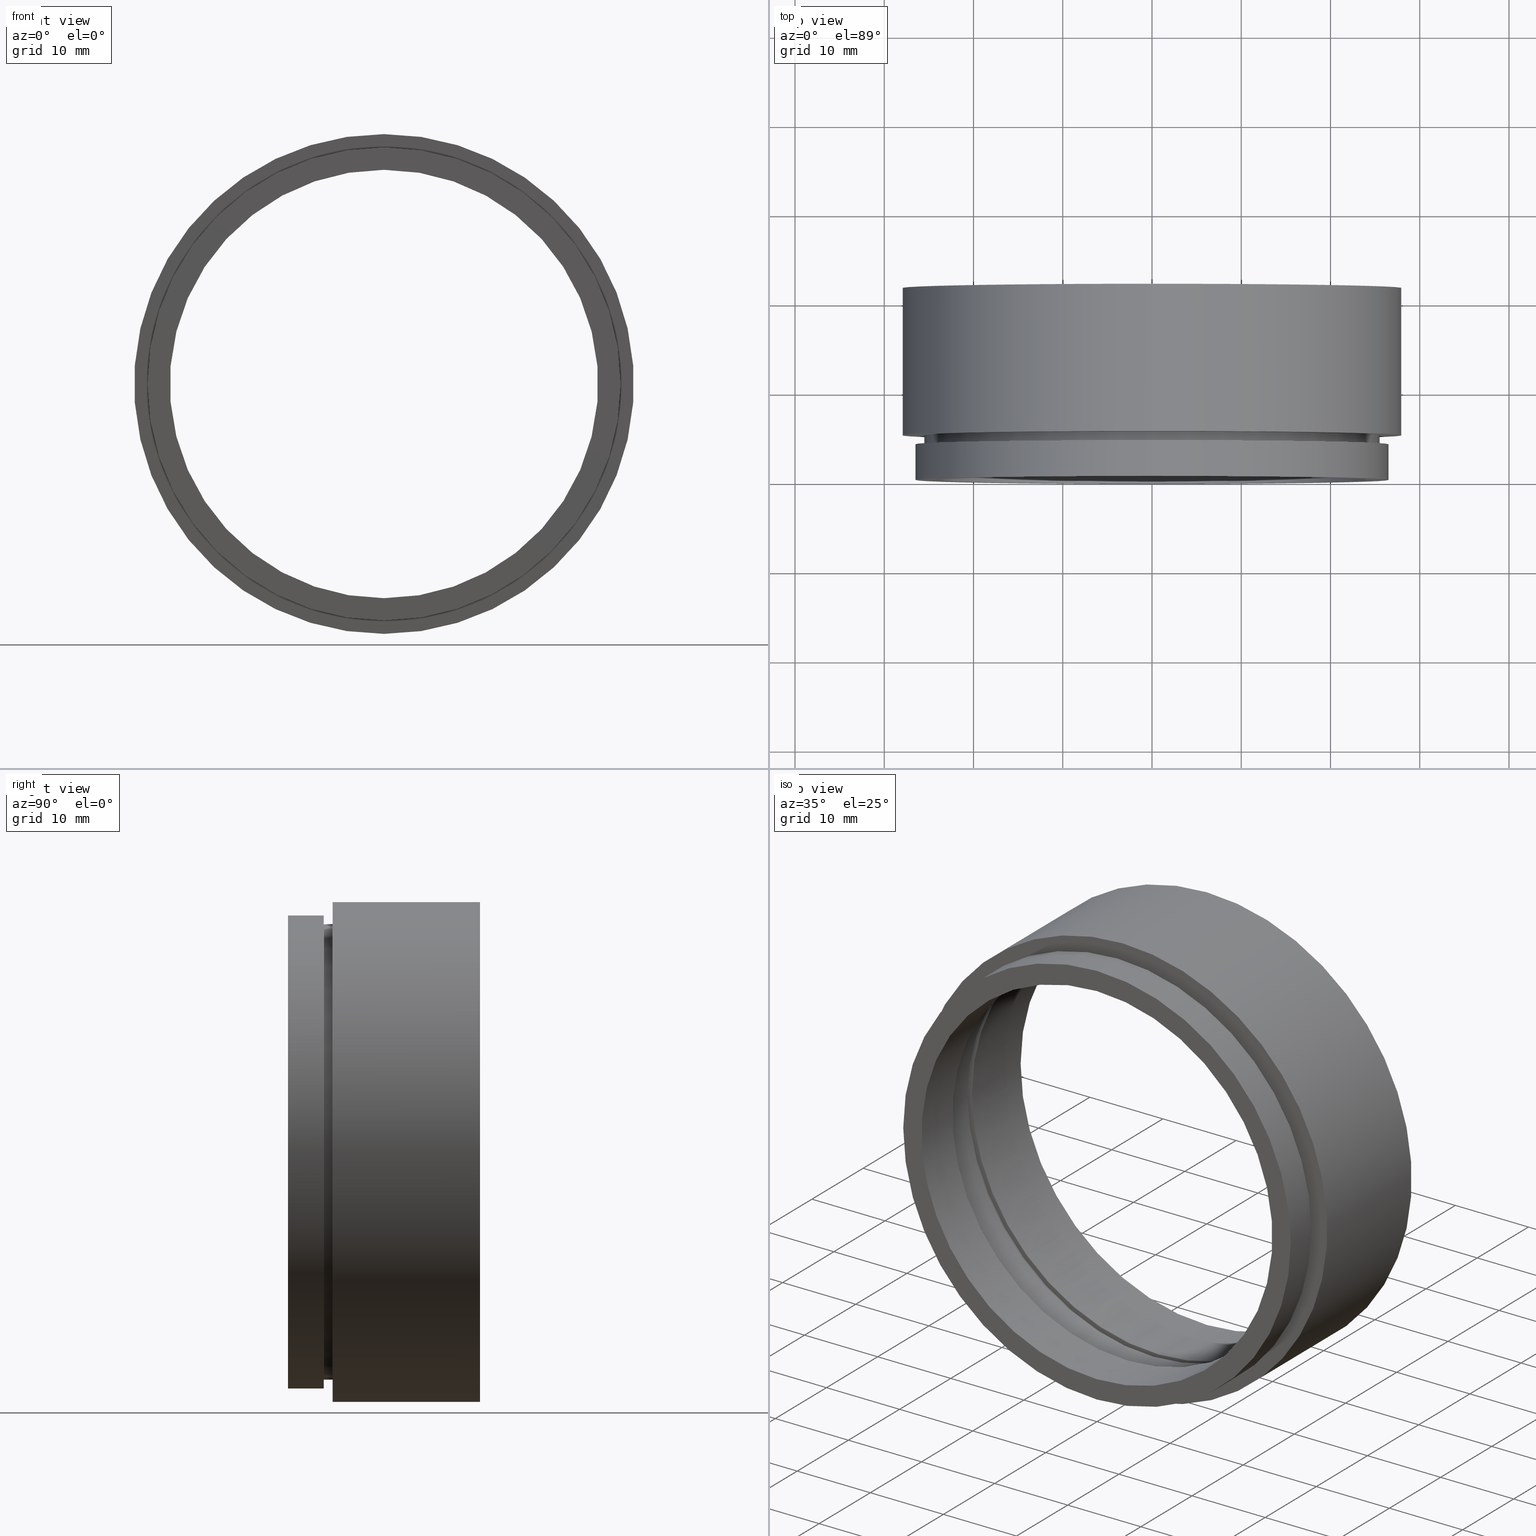
[diagram: canonical four-view strip — front | top / right | iso, engineering-drawing reading convention]
A machine part, canonical four-view strip (front | top / right | iso — engineering-drawing reading convention). The complete STEP part file that produces these views, byte-faithful:
ISO-10303-21;
HEADER;
FILE_DESCRIPTION (( 'STEP AP214' ),
    '1' );
FILE_NAME ('500001.STEP',
    '2019-08-29T05:40:49',
    ( 'user' ),
    ( '΢���й�' ),
    'SwSTEP 2.0',
    'SolidWorks 2016',
    '' );
FILE_SCHEMA (( 'AUTOMOTIVE_DESIGN' ));
ENDSEC;

DATA;
#1 =( NAMED_UNIT ( * ) PLANE_ANGLE_UNIT ( ) SI_UNIT ( $, .RADIAN. ) );
#2 =( NAMED_UNIT ( * ) SI_UNIT ( $, .STERADIAN. ) SOLID_ANGLE_UNIT ( ) );
#3 = VECTOR ( 'NONE', #120, 1000.000000000000000 ) ;
#4 = STYLED_ITEM ( 'NONE', ( #200 ), #8 ) ;
#5 = ADVANCED_FACE ( 'NONE', ( #600 ), #523, .T. ) ;
#6 = ORIENTED_EDGE ( 'NONE', *, *, #232, .F. ) ;
#7 = ORIENTED_EDGE ( 'NONE', *, *, #399, .T. ) ;
#8 = ADVANCED_FACE ( 'NONE', ( #673 ), #413, .T. ) ;
#9 = DIRECTION ( 'NONE',  ( -0.0000000000000000000, -1.000000000000000000, -0.0000000000000000000 ) ) ;
#10 = AXIS2_PLACEMENT_3D ( 'NONE', #597, #580, #381 ) ;
#11 = STYLED_ITEM ( 'NONE', ( #648 ), #317 ) ;
#12 = ORIENTED_EDGE ( 'NONE', *, *, #622, .F. ) ;
#13 = ORIENTED_EDGE ( 'NONE', *, *, #160, .F. ) ;
#14 = ORIENTED_EDGE ( 'NONE', *, *, #393, .F. ) ;
#15 = EDGE_LOOP ( 'NONE', ( #636, #658, #450, #231 ) ) ;
#16 = DIRECTION ( 'NONE',  ( -0.0000000000000000000, -1.000000000000000000, -0.0000000000000000000 ) ) ;
#17 = CARTESIAN_POINT ( 'NONE',  ( 0.0000000000000000000, 6.000000000000000900, 0.0000000000000000000 ) ) ;
#18 = FACE_OUTER_BOUND ( 'NONE', #116, .T. ) ;
#19 = CARTESIAN_POINT ( 'NONE',  ( 3.122849337825750200E-015, 21.50000000000000000, 25.50000000000000000 ) ) ;
#20 = CARTESIAN_POINT ( 'NONE',  ( 3.196328145774592300E-015, 0.0000000000000000000, 26.10000000000000100 ) ) ;
#21 = ORIENTED_EDGE ( 'NONE', *, *, #85, .T. ) ;
#22 = FACE_OUTER_BOUND ( 'NONE', #277, .T. ) ;
#23 = AXIS2_PLACEMENT_3D ( 'NONE', #304, #230, #471 ) ;
#24 = UNCERTAINTY_MEASURE_WITH_UNIT (LENGTH_MEASURE( 1.000000000000000100E-005 ), #458, 'distance_accuracy_value', 'NONE');
#25 = DIRECTION ( 'NONE',  ( 0.0000000000000000000, 0.0000000000000000000, -1.000000000000000000 ) ) ;
#26 =( LENGTH_UNIT ( ) NAMED_UNIT ( * ) SI_UNIT ( .MILLI., .METRE. ) );
#27 = EDGE_CURVE ( 'NONE', #498, #351, #465, .T. ) ;
#28 = DIRECTION ( 'NONE',  ( -0.0000000000000000000, -1.000000000000000000, -0.0000000000000000000 ) ) ;
#29 = ORIENTED_EDGE ( 'NONE', *, *, #90, .T. ) ;
#30 = ORIENTED_EDGE ( 'NONE', *, *, #479, .T. ) ;
#31 = PRESENTATION_STYLE_ASSIGNMENT (( #418 ) ) ;
#32 = DIRECTION ( 'NONE',  ( -0.0000000000000000000, -1.000000000000000000, -0.0000000000000000000 ) ) ;
#33 = DIRECTION ( 'NONE',  ( -0.0000000000000000000, -1.000000000000000000, -0.0000000000000000000 ) ) ;
#34 = AXIS2_PLACEMENT_3D ( 'NONE', #281, #492, #248 ) ;
#35 = DIRECTION ( 'NONE',  ( -0.0000000000000000000, -1.000000000000000000, -0.0000000000000000000 ) ) ;
#36 = FACE_OUTER_BOUND ( 'NONE', #378, .T. ) ;
#37 = DIRECTION ( 'NONE',  ( -0.0000000000000000000, -1.000000000000000000, -0.0000000000000000000 ) ) ;
#38 = SURFACE_STYLE_FILL_AREA ( #397 ) ;
#39 = AXIS2_PLACEMENT_3D ( 'NONE', #192, #618, #428 ) ;
#40 = VECTOR ( 'NONE', #651, 1000.000000000000000 ) ;
#41 = SURFACE_STYLE_USAGE ( .BOTH. , #125 ) ;
#42 = DIRECTION ( 'NONE',  ( -0.0000000000000000000, -1.000000000000000000, -0.0000000000000000000 ) ) ;
#43 = ORIENTED_EDGE ( 'NONE', *, *, #99, .F. ) ;
#44 = DIRECTION ( 'NONE',  ( -0.0000000000000000000, -1.000000000000000000, -0.0000000000000000000 ) ) ;
#45 = CIRCLE ( 'NONE', #411, 25.50000000000000000 ) ;
#46 = EDGE_CURVE ( 'NONE', #541, #78, #332, .T. ) ;
#47 = FACE_OUTER_BOUND ( 'NONE', #300, .T. ) ;
#48 = DIRECTION ( 'NONE',  ( -0.0000000000000000000, -1.000000000000000000, -0.0000000000000000000 ) ) ;
#49 = DIRECTION ( 'NONE',  ( -0.0000000000000000000, -1.000000000000000000, -0.0000000000000000000 ) ) ;
#50 = ORIENTED_EDGE ( 'NONE', *, *, #296, .F. ) ;
#51 = ADVANCED_FACE ( 'NONE', ( #47 ), #83, .T. ) ;
#52 = DIRECTION ( 'NONE',  ( 0.0000000000000000000, 0.0000000000000000000, -1.000000000000000000 ) ) ;
#53 =( GEOMETRIC_REPRESENTATION_CONTEXT ( 3 ) GLOBAL_UNCERTAINTY_ASSIGNED_CONTEXT ( ( #334 ) ) GLOBAL_UNIT_ASSIGNED_CONTEXT ( ( #107, #1, #476 ) ) REPRESENTATION_CONTEXT ( 'NONE', 'WORKASPACE' ) );
#54 = DIRECTION ( 'NONE',  ( 0.0000000000000000000, 0.0000000000000000000, -1.000000000000000000 ) ) ;
#55 = ADVANCED_FACE ( 'NONE', ( #64 ), #355, .F. ) ;
#56 = CARTESIAN_POINT ( 'NONE',  ( 3.110602869834276900E-015, 0.0000000000000000000, 25.39999999999999900 ) ) ;
#57 = AXIS2_PLACEMENT_3D ( 'NONE', #293, #183, #483 ) ;
#58 = ORIENTED_EDGE ( 'NONE', *, *, #547, .F. ) ;
#59 = VERTEX_POINT ( 'NONE', #543 ) ;
#60 = VERTEX_POINT ( 'NONE', #262 ) ;
#61 = VECTOR ( 'NONE', #9, 1000.000000000000000 ) ;
#62 = MECHANICAL_DESIGN_GEOMETRIC_PRESENTATION_REPRESENTATION (  '', ( #504 ), #178 ) ;
#63 = CARTESIAN_POINT ( 'NONE',  ( 0.0000000000000000000, 6.000000000000000000, -24.00000000000000000 ) ) ;
#64 = FACE_OUTER_BOUND ( 'NONE', #517, .T. ) ;
#65 = DIRECTION ( 'NONE',  ( 0.0000000000000000000, 0.0000000000000000000, -1.000000000000000000 ) ) ;
#66 = DIRECTION ( 'NONE',  ( -0.0000000000000000000, -1.000000000000000000, -0.0000000000000000000 ) ) ;
#67 = EDGE_LOOP ( 'NONE', ( #599, #279, #406, #156 ) ) ;
#68 = SHAPE_DEFINITION_REPRESENTATION ( #672, #537 ) ;
#69 = DIRECTION ( 'NONE',  ( 0.0000000000000000000, 0.0000000000000000000, -1.000000000000000000 ) ) ;
#70 = MECHANICAL_DESIGN_GEOMETRIC_PRESENTATION_REPRESENTATION (  '', ( #4 ), #110 ) ;
#71 = CARTESIAN_POINT ( 'NONE',  ( 0.0000000000000000000, 0.0000000000000000000, -24.00000000000000000 ) ) ;
#72 = FACE_BOUND ( 'NONE', #223, .T. ) ;
#73 = CARTESIAN_POINT ( 'NONE',  ( 0.0000000000000000000, 5.000000000000000000, 0.0000000000000000000 ) ) ;
#74 = DIRECTION ( 'NONE',  ( 0.0000000000000000000, 0.0000000000000000000, -1.000000000000000000 ) ) ;
#75 = DIRECTION ( 'NONE',  ( 0.0000000000000000000, 0.0000000000000000000, 1.000000000000000000 ) ) ;
#76 = AXIS2_PLACEMENT_3D ( 'NONE', #354, #626, #196 ) ;
#77 = CYLINDRICAL_SURFACE ( 'NONE', #322, 26.50000000000000000 ) ;
#78 = VERTEX_POINT ( 'NONE', #495 ) ;
#79 = ORIENTED_EDGE ( 'NONE', *, *, #195, .F. ) ;
#80 = EDGE_LOOP ( 'NONE', ( #637, #403, #451, #470 ) ) ;
#81 =( LENGTH_UNIT ( ) NAMED_UNIT ( * ) SI_UNIT ( .MILLI., .METRE. ) );
#82 = CARTESIAN_POINT ( 'NONE',  ( 27.99999999999999600, 21.50000000000000000, 0.0000000000000000000 ) ) ;
#83 = CYLINDRICAL_SURFACE ( 'NONE', #218, 27.99999999999999600 ) ;
#84 = PLANE ( 'NONE',  #163 ) ;
#85 = EDGE_CURVE ( 'NONE', #87, #664, #608, .T. ) ;
#86 = FILL_AREA_STYLE ('',( #282 ) ) ;
#87 = VERTEX_POINT ( 'NONE', #92 ) ;
#88 = ORIENTED_EDGE ( 'NONE', *, *, #195, .T. ) ;
#89 = APPLICATION_PROTOCOL_DEFINITION ( 'draft international standard', 'automotive_design', 1998, #660 ) ;
#90 = EDGE_CURVE ( 'NONE', #442, #551, #101, .T. ) ;
#91 = CIRCLE ( 'NONE', #656, 25.50000000000000000 ) ;
#92 = CARTESIAN_POINT ( 'NONE',  ( 0.0000000000000000000, 21.50000000000000000, -25.50000000000000000 ) ) ;
#93 = ORIENTED_EDGE ( 'NONE', *, *, #659, .T. ) ;
#94 = PRESENTATION_LAYER_ASSIGNMENT (  '', '', ( #138 ) ) ;
#95 = ORIENTED_EDGE ( 'NONE', *, *, #506, .F. ) ;
#96 = CIRCLE ( 'NONE', #513, 25.50000000000000000 ) ;
#97 = UNCERTAINTY_MEASURE_WITH_UNIT (LENGTH_MEASURE( 1.000000000000000100E-005 ), #128, 'distance_accuracy_value', 'NONE');
#98 = CARTESIAN_POINT ( 'NONE',  ( 26.50000000000000000, 4.000000000000000000, 0.0000000000000000000 ) ) ;
#99 = EDGE_CURVE ( 'NONE', #78, #541, #583, .T. ) ;
#100 = AXIS2_PLACEMENT_3D ( 'NONE', #244, #469, #188 ) ;
#101 = CIRCLE ( 'NONE', #496, 24.00000000000000000 ) ;
#102 = CARTESIAN_POINT ( 'NONE',  ( 0.0000000000000000000, 4.000000000000000000, 0.0000000000000000000 ) ) ;
#103 = DIRECTION ( 'NONE',  ( 0.0000000000000000000, 0.0000000000000000000, -1.000000000000000000 ) ) ;
#104 = DIRECTION ( 'NONE',  ( 0.0000000000000000000, -0.0000000000000000000, 1.000000000000000000 ) ) ;
#105 = EDGE_CURVE ( 'NONE', #242, #59, #621, .T. ) ;
#106 = COLOUR_RGB ( '',1.000000000000000000, 1.000000000000000000, 1.000000000000000000 ) ;
#107 =( LENGTH_UNIT ( ) NAMED_UNIT ( * ) SI_UNIT ( .MILLI., .METRE. ) );
#108 = DIRECTION ( 'NONE',  ( 0.0000000000000000000, 0.0000000000000000000, -1.000000000000000000 ) ) ;
#109 = DIRECTION ( 'NONE',  ( 0.0000000000000000000, 0.0000000000000000000, -1.000000000000000000 ) ) ;
#110 =( GEOMETRIC_REPRESENTATION_CONTEXT ( 3 ) GLOBAL_UNCERTAINTY_ASSIGNED_CONTEXT ( ( #655 ) ) GLOBAL_UNIT_ASSIGNED_CONTEXT ( ( #377, #503, #2 ) ) REPRESENTATION_CONTEXT ( 'NONE', 'WORKASPACE' ) );
#111 = ADVANCED_FACE ( 'NONE', ( #324, #466 ), #84, .T. ) ;
#112 = LINE ( 'NONE', #234, #489 ) ;
#113 = VERTEX_POINT ( 'NONE', #563 ) ;
#114 = ORIENTED_EDGE ( 'NONE', *, *, #46, .T. ) ;
#115 =( NAMED_UNIT ( * ) SI_UNIT ( $, .STERADIAN. ) SOLID_ANGLE_UNIT ( ) );
#116 = EDGE_LOOP ( 'NONE', ( #556, #344 ) ) ;
#117 = DIRECTION ( 'NONE',  ( 0.0000000000000000000, 0.0000000000000000000, -1.000000000000000000 ) ) ;
#118 = AXIS2_PLACEMENT_3D ( 'NONE', #363, #414, #507 ) ;
#119 = PRESENTATION_LAYER_ASSIGNMENT (  '', '', ( #11 ) ) ;
#120 = DIRECTION ( 'NONE',  ( -0.0000000000000000000, -1.000000000000000000, -0.0000000000000000000 ) ) ;
#121 = CARTESIAN_POINT ( 'NONE',  ( 3.429011037612589700E-015, 5.000000000000000000, 28.00000000000000400 ) ) ;
#122 = ORIENTED_EDGE ( 'NONE', *, *, #589, .F. ) ;
#123 = EDGE_LOOP ( 'NONE', ( #241, #259 ) ) ;
#124 = VECTOR ( 'NONE', #524, 1000.000000000000000 ) ;
#125 = SURFACE_SIDE_STYLE ('',( #376 ) ) ;
#126 = EDGE_CURVE ( 'NONE', #351, #337, #151, .T. ) ;
#127 = CARTESIAN_POINT ( 'NONE',  ( 0.0000000000000000000, 0.0000000000000000000, 0.0000000000000000000 ) ) ;
#128 =( LENGTH_UNIT ( ) NAMED_UNIT ( * ) SI_UNIT ( .MILLI., .METRE. ) );
#129 = CIRCLE ( 'NONE', #276, 27.99999999999999600 ) ;
#130 = EDGE_CURVE ( 'NONE', #533, #635, #520, .T. ) ;
#131 = CARTESIAN_POINT ( 'NONE',  ( 0.0000000000000000000, 0.0000000000000000000, -25.50000000000000000 ) ) ;
#132 = AXIS2_PLACEMENT_3D ( 'NONE', #258, #538, #555 ) ;
#133 = ORIENTED_EDGE ( 'NONE', *, *, #509, .T. ) ;
#134 = ORIENTED_EDGE ( 'NONE', *, *, #611, .T. ) ;
#135 = PLANE ( 'NONE',  #620 ) ;
#136 = ORIENTED_EDGE ( 'NONE', *, *, #130, .T. ) ;
#137 = FACE_BOUND ( 'NONE', #516, .T. ) ;
#138 = STYLED_ITEM ( 'NONE', ( #235 ), #221 ) ;
#139 = SURFACE_SIDE_STYLE ('',( #572 ) ) ;
#140 = SURFACE_SIDE_STYLE ('',( #379 ) ) ;
#141 = AXIS2_PLACEMENT_3D ( 'NONE', #318, #410, #654 ) ;
#142 = ORIENTED_EDGE ( 'NONE', *, *, #330, .F. ) ;
#143 = ORIENTED_EDGE ( 'NONE', *, *, #606, .F. ) ;
#144 = DIRECTION ( 'NONE',  ( -0.0000000000000000000, -1.000000000000000000, -0.0000000000000000000 ) ) ;
#145 = DIRECTION ( 'NONE',  ( 0.0000000000000000000, -0.0000000000000000000, 1.000000000000000000 ) ) ;
#146 = EDGE_CURVE ( 'NONE', #386, #461, #640, .T. ) ;
#147 = CIRCLE ( 'NONE', #585, 26.10000000000000100 ) ;
#148 = AXIS2_PLACEMENT_3D ( 'NONE', #409, #144, #65 ) ;
#149 = DIRECTION ( 'NONE',  ( -0.0000000000000000000, -1.000000000000000000, -0.0000000000000000000 ) ) ;
#150 = AXIS2_PLACEMENT_3D ( 'NONE', #208, #559, #315 ) ;
#151 = CIRCLE ( 'NONE', #522, 28.00000000000000000 ) ;
#152 = DIRECTION ( 'NONE',  ( 0.0000000000000000000, 0.0000000000000000000, -1.000000000000000000 ) ) ;
#153 = DIRECTION ( 'NONE',  ( 0.0000000000000000000, 0.0000000000000000000, -1.000000000000000000 ) ) ;
#154 = VERTEX_POINT ( 'NONE', #598 ) ;
#155 = MECHANICAL_DESIGN_GEOMETRIC_PRESENTATION_REPRESENTATION (  '', ( #11 ), #263 ) ;
#156 = ORIENTED_EDGE ( 'NONE', *, *, #187, .F. ) ;
#157 = PLANE ( 'NONE',  #449 ) ;
#158 = FILL_AREA_STYLE_COLOUR ( '', #302 ) ;
#159 = CARTESIAN_POINT ( 'NONE',  ( 3.245314017740485800E-015, 4.000000000000000000, 26.50000000000000000 ) ) ;
#160 = EDGE_CURVE ( 'NONE', #498, #165, #505, .T. ) ;
#161 = DIRECTION ( 'NONE',  ( 0.0000000000000000000, 0.0000000000000000000, -1.000000000000000000 ) ) ;
#162 = DIRECTION ( 'NONE',  ( -0.0000000000000000000, -1.000000000000000000, -0.0000000000000000000 ) ) ;
#163 = AXIS2_PLACEMENT_3D ( 'NONE', #98, #628, #104 ) ;
#164 = PLANE ( 'NONE',  #57 ) ;
#165 = VERTEX_POINT ( 'NONE', #464 ) ;
#166 = PRESENTATION_LAYER_ASSIGNMENT (  '', '', ( #366 ) ) ;
#167 = ADVANCED_FACE ( 'NONE', ( #591, #18 ), #164, .T. ) ;
#168 = CARTESIAN_POINT ( 'NONE',  ( 3.196328145774592300E-015, 11.00000000000000200, 26.10000000000000100 ) ) ;
#169 = SURFACE_STYLE_USAGE ( .BOTH. , #425 ) ;
#170 = CARTESIAN_POINT ( 'NONE',  ( 0.0000000000000000000, 0.0000000000000000000, -27.99999999999999600 ) ) ;
#171 = AXIS2_PLACEMENT_3D ( 'NONE', #220, #327, #424 ) ;
#172 = FACE_OUTER_BOUND ( 'NONE', #501, .T. ) ;
#173 = CARTESIAN_POINT ( 'NONE',  ( 3.110602869834277700E-015, 11.00000000000000200, 25.40000000000000600 ) ) ;
#174 = EDGE_LOOP ( 'NONE', ( #643, #13 ) ) ;
#175 = ORIENTED_EDGE ( 'NONE', *, *, #547, .T. ) ;
#176 = DIRECTION ( 'NONE',  ( 0.0000000000000000000, 0.0000000000000000000, -1.000000000000000000 ) ) ;
#177 = ORIENTED_EDGE ( 'NONE', *, *, #434, .T. ) ;
#178 =( GEOMETRIC_REPRESENTATION_CONTEXT ( 3 ) GLOBAL_UNCERTAINTY_ASSIGNED_CONTEXT ( ( #264 ) ) GLOBAL_UNIT_ASSIGNED_CONTEXT ( ( #26, #283, #390 ) ) REPRESENTATION_CONTEXT ( 'NONE', 'WORKASPACE' ) );
#179 = DIRECTION ( 'NONE',  ( -0.0000000000000000000, -1.000000000000000000, -0.0000000000000000000 ) ) ;
#180 = DIRECTION ( 'NONE',  ( -0.0000000000000000000, -1.000000000000000000, -0.0000000000000000000 ) ) ;
#181 = AXIS2_PLACEMENT_3D ( 'NONE', #412, #49, #109 ) ;
#182 = DIRECTION ( 'NONE',  ( -0.0000000000000000000, -1.000000000000000000, -0.0000000000000000000 ) ) ;
#183 = DIRECTION ( 'NONE',  ( 0.0000000000000000000, 1.000000000000000000, 0.0000000000000000000 ) ) ;
#184 = AXIS2_PLACEMENT_3D ( 'NONE', #102, #179, #446 ) ;
#185 = CARTESIAN_POINT ( 'NONE',  ( 0.0000000000000000000, 5.000000000000000000, 0.0000000000000000000 ) ) ;
#186 = VECTOR ( 'NONE', #35, 1000.000000000000000 ) ;
#187 = EDGE_CURVE ( 'NONE', #78, #59, #364, .T. ) ;
#188 = DIRECTION ( 'NONE',  ( 0.0000000000000000000, 0.0000000000000000000, -1.000000000000000000 ) ) ;
#189 = AXIS2_PLACEMENT_3D ( 'NONE', #280, #401, #463 ) ;
#190 = ORIENTED_EDGE ( 'NONE', *, *, #502, .F. ) ;
#191 = CIRCLE ( 'NONE', #614, 24.00000000000000000 ) ;
#192 = CARTESIAN_POINT ( 'NONE',  ( 0.0000000000000000000, 0.0000000000000000000, 0.0000000000000000000 ) ) ;
#193 = DIRECTION ( 'NONE',  ( 0.0000000000000000000, 0.0000000000000000000, -1.000000000000000000 ) ) ;
#194 = LINE ( 'NONE', #71, #297 ) ;
#195 = EDGE_CURVE ( 'NONE', #430, #240, #254, .T. ) ;
#196 = DIRECTION ( 'NONE',  ( 0.0000000000000000000, 0.0000000000000000000, -1.000000000000000000 ) ) ;
#197 = DIRECTION ( 'NONE',  ( 0.0000000000000000000, 1.000000000000000000, 0.0000000000000000000 ) ) ;
#198 = ORIENTED_EDGE ( 'NONE', *, *, #576, .T. ) ;
#199 = ORIENTED_EDGE ( 'NONE', *, *, #506, .T. ) ;
#200 = PRESENTATION_STYLE_ASSIGNMENT (( #41 ) ) ;
#201 = DIRECTION ( 'NONE',  ( 0.0000000000000000000, 0.0000000000000000000, -1.000000000000000000 ) ) ;
#202 = DIRECTION ( 'NONE',  ( -0.0000000000000000000, -1.000000000000000000, -0.0000000000000000000 ) ) ;
#203 = MECHANICAL_DESIGN_GEOMETRIC_PRESENTATION_REPRESENTATION (  '', ( #138 ), #246 ) ;
#204 = VECTOR ( 'NONE', #578, 1000.000000000000000 ) ;
#205 = CLOSED_SHELL ( 'NONE', ( #365, #634, #221, #51, #216, #317, #579, #55, #421, #8, #111, #530, #274, #5, #270, #485, #426, #532, #629, #482, #167 ) ) ;
#206 = ORIENTED_EDGE ( 'NONE', *, *, #393, .T. ) ;
#207 = CIRCLE ( 'NONE', #662, 25.50000000000000000 ) ;
#208 = CARTESIAN_POINT ( 'NONE',  ( 0.0000000000000000000, 4.000000000000000000, 0.0000000000000000000 ) ) ;
#209 = CARTESIAN_POINT ( 'NONE',  ( 0.0000000000000000000, 0.0000000000000000000, 0.0000000000000000000 ) ) ;
#210 = FILL_AREA_STYLE_COLOUR ( '', #106 ) ;
#211 = CARTESIAN_POINT ( 'NONE',  ( 0.0000000000000000000, 0.0000000000000000000, 0.0000000000000000000 ) ) ;
#212 = AXIS2_PLACEMENT_3D ( 'NONE', #623, #311, #161 ) ;
#213 = SURFACE_SIDE_STYLE ('',( #570 ) ) ;
#214 = EDGE_LOOP ( 'NONE', ( #526, #306, #7, #370 ) ) ;
#215 = COLOUR_RGB ( '',1.000000000000000000, 1.000000000000000000, 1.000000000000000000 ) ;
#216 = ADVANCED_FACE ( 'NONE', ( #219 ), #531, .T. ) ;
#217 = DIRECTION ( 'NONE',  ( 0.0000000000000000000, -0.0000000000000000000, 1.000000000000000000 ) ) ;
#218 = AXIS2_PLACEMENT_3D ( 'NONE', #467, #323, #25 ) ;
#219 = FACE_OUTER_BOUND ( 'NONE', #477, .T. ) ;
#220 = CARTESIAN_POINT ( 'NONE',  ( 0.0000000000000000000, 0.0000000000000000000, 0.0000000000000000000 ) ) ;
#221 = ADVANCED_FACE ( 'NONE', ( #172 ), #419, .F. ) ;
#222 = LINE ( 'NONE', #20, #204 ) ;
#223 = EDGE_LOOP ( 'NONE', ( #95, #265 ) ) ;
#224 = ORIENTED_EDGE ( 'NONE', *, *, #611, .F. ) ;
#225 = AXIS2_PLACEMENT_3D ( 'NONE', #345, #312, #108 ) ;
#226 = UNCERTAINTY_MEASURE_WITH_UNIT (LENGTH_MEASURE( 1.000000000000000100E-005 ), #392, 'distance_accuracy_value', 'NONE');
#227 = EDGE_LOOP ( 'NONE', ( #480, #114, #674, #602 ) ) ;
#228 = VECTOR ( 'NONE', #266, 1000.000000000000000 ) ;
#229 = DIRECTION ( 'NONE',  ( 0.0000000000000000000, 0.0000000000000000000, -1.000000000000000000 ) ) ;
#230 = DIRECTION ( 'NONE',  ( -0.0000000000000000000, -1.000000000000000000, -0.0000000000000000000 ) ) ;
#231 = ORIENTED_EDGE ( 'NONE', *, *, #247, .F. ) ;
#232 = EDGE_CURVE ( 'NONE', #337, #351, #510, .T. ) ;
#233 = DIRECTION ( 'NONE',  ( -0.0000000000000000000, -1.000000000000000000, -0.0000000000000000000 ) ) ;
#234 = CARTESIAN_POINT ( 'NONE',  ( 3.245314017740485800E-015, 0.0000000000000000000, 26.50000000000000000 ) ) ;
#235 = PRESENTATION_STYLE_ASSIGNMENT (( #169 ) ) ;
#236 = DIRECTION ( 'NONE',  ( -0.0000000000000000000, -1.000000000000000000, -0.0000000000000000000 ) ) ;
#237 = AXIS2_PLACEMENT_3D ( 'NONE', #573, #268, #103 ) ;
#238 = DIRECTION ( 'NONE',  ( -0.0000000000000000000, -1.000000000000000000, -0.0000000000000000000 ) ) ;
#239 = VECTOR ( 'NONE', #521, 1000.000000000000000 ) ;
#240 = VERTEX_POINT ( 'NONE', #168 ) ;
#241 = ORIENTED_EDGE ( 'NONE', *, *, #601, .F. ) ;
#242 = VERTEX_POINT ( 'NONE', #649 ) ;
#243 = ORIENTED_EDGE ( 'NONE', *, *, #473, .F. ) ;
#244 = CARTESIAN_POINT ( 'NONE',  ( 0.0000000000000000000, 21.50000000000000000, 0.0000000000000000000 ) ) ;
#245 = CIRCLE ( 'NONE', #314, 25.40000000000000200 ) ;
#246 =( GEOMETRIC_REPRESENTATION_CONTEXT ( 3 ) GLOBAL_UNCERTAINTY_ASSIGNED_CONTEXT ( ( #97 ) ) GLOBAL_UNIT_ASSIGNED_CONTEXT ( ( #128, #439, #647 ) ) REPRESENTATION_CONTEXT ( 'NONE', 'WORKASPACE' ) );
#247 = EDGE_CURVE ( 'NONE', #551, #307, #194, .T. ) ;
#248 = DIRECTION ( 'NONE',  ( 0.0000000000000000000, 0.0000000000000000000, -1.000000000000000000 ) ) ;
#249 = DIRECTION ( 'NONE',  ( 0.0000000000000000000, 0.0000000000000000000, -1.000000000000000000 ) ) ;
#250 = ORIENTED_EDGE ( 'NONE', *, *, #571, .T. ) ;
#251 = PRESENTATION_STYLE_ASSIGNMENT (( #452 ) ) ;
#252 = CARTESIAN_POINT ( 'NONE',  ( 0.0000000000000000000, 4.000000000000000000, 0.0000000000000000000 ) ) ;
#253 = CARTESIAN_POINT ( 'NONE',  ( 0.0000000000000000000, 0.0000000000000000000, -25.39999999999999900 ) ) ;
#254 = CIRCLE ( 'NONE', #23, 26.10000000000000100 ) ;
#255 = AXIS2_PLACEMENT_3D ( 'NONE', #209, #202, #474 ) ;
#256 = CYLINDRICAL_SURFACE ( 'NONE', #225, 24.00000000000000000 ) ;
#257 = EDGE_LOOP ( 'NONE', ( #198, #177 ) ) ;
#258 = CARTESIAN_POINT ( 'NONE',  ( 0.0000000000000000000, 11.00000000000000200, 0.0000000000000000000 ) ) ;
#259 = ORIENTED_EDGE ( 'NONE', *, *, #455, .F. ) ;
#260 = APPLICATION_CONTEXT ( 'automotive_design' ) ;
#261 = LINE ( 'NONE', #316, #228 ) ;
#262 = CARTESIAN_POINT ( 'NONE',  ( 3.196328145774592300E-015, 12.00000000000000000, 26.10000000000000100 ) ) ;
#263 =( GEOMETRIC_REPRESENTATION_CONTEXT ( 3 ) GLOBAL_UNCERTAINTY_ASSIGNED_CONTEXT ( ( #226 ) ) GLOBAL_UNIT_ASSIGNED_CONTEXT ( ( #392, #575, #298 ) ) REPRESENTATION_CONTEXT ( 'NONE', 'WORKASPACE' ) );
#264 = UNCERTAINTY_MEASURE_WITH_UNIT (LENGTH_MEASURE( 1.000000000000000100E-005 ), #26, 'distance_accuracy_value', 'NONE');
#265 = ORIENTED_EDGE ( 'NONE', *, *, #271, .F. ) ;
#266 = DIRECTION ( 'NONE',  ( -0.0000000000000000000, -1.000000000000000000, -0.0000000000000000000 ) ) ;
#267 = LINE ( 'NONE', #566, #124 ) ;
#268 = DIRECTION ( 'NONE',  ( -0.0000000000000000000, -1.000000000000000000, -0.0000000000000000000 ) ) ;
#269 = EDGE_CURVE ( 'NONE', #165, #498, #129, .T. ) ;
#270 = ADVANCED_FACE ( 'NONE', ( #561, #437 ), #157, .T. ) ;
#271 = EDGE_CURVE ( 'NONE', #534, #431, #45, .T. ) ;
#272 = PLANE ( 'NONE',  #319 ) ;
#273 = EDGE_LOOP ( 'NONE', ( #143, #361, #175, #224 ) ) ;
#274 = ADVANCED_FACE ( 'NONE', ( #568, #72 ), #135, .T. ) ;
#275 = SURFACE_STYLE_USAGE ( .BOTH. , #486 ) ;
#276 = AXIS2_PLACEMENT_3D ( 'NONE', #454, #657, #249 ) ;
#277 = EDGE_LOOP ( 'NONE', ( #12, #50, #609, #88 ) ) ;
#278 = AXIS2_PLACEMENT_3D ( 'NONE', #127, #75, #447 ) ;
#279 = ORIENTED_EDGE ( 'NONE', *, *, #326, .T. ) ;
#280 = CARTESIAN_POINT ( 'NONE',  ( 0.0000000000000000000, 0.0000000000000000000, 0.0000000000000000000 ) ) ;
#281 = CARTESIAN_POINT ( 'NONE',  ( 0.0000000000000000000, 0.0000000000000000000, 0.0000000000000000000 ) ) ;
#282 = FILL_AREA_STYLE_COLOUR ( '', #294 ) ;
#283 =( NAMED_UNIT ( * ) PLANE_ANGLE_UNIT ( ) SI_UNIT ( $, .RADIAN. ) );
#284 = CARTESIAN_POINT ( 'NONE',  ( 0.0000000000000000000, 0.0000000000000000000, 0.0000000000000000000 ) ) ;
#285 = AXIS2_PLACEMENT_3D ( 'NONE', #436, #66, #380 ) ;
#286 = FILL_AREA_STYLE_COLOUR ( '', #215 ) ;
#287 = ORIENTED_EDGE ( 'NONE', *, *, #232, .T. ) ;
#288 = COLOUR_RGB ( '',1.000000000000000000, 1.000000000000000000, 1.000000000000000000 ) ;
#289 = ORIENTED_EDGE ( 'NONE', *, *, #669, .T. ) ;
#290 =( NAMED_UNIT ( * ) PLANE_ANGLE_UNIT ( ) SI_UNIT ( $, .RADIAN. ) );
#291 = CIRCLE ( 'NONE', #212, 24.00000000000000000 ) ;
#292 = AXIS2_PLACEMENT_3D ( 'NONE', #368, #631, #117 ) ;
#293 = CARTESIAN_POINT ( 'NONE',  ( 25.39999999999999900, 6.000000000000000000, 0.0000000000000000000 ) ) ;
#294 = COLOUR_RGB ( '',1.000000000000000000, 1.000000000000000000, 1.000000000000000000 ) ;
#295 = CARTESIAN_POINT ( 'NONE',  ( 0.0000000000000000000, 0.0000000000000000000, -24.00000000000000000 ) ) ;
#296 = EDGE_CURVE ( 'NONE', #619, #60, #147, .T. ) ;
#297 = VECTOR ( 'NONE', #149, 1000.000000000000000 ) ;
#298 =( NAMED_UNIT ( * ) SI_UNIT ( $, .STERADIAN. ) SOLID_ANGLE_UNIT ( ) );
#299 = DIRECTION ( 'NONE',  ( 0.0000000000000000000, 0.0000000000000000000, -1.000000000000000000 ) ) ;
#300 = EDGE_LOOP ( 'NONE', ( #371, #358, #6, #142 ) ) ;
#301 = EDGE_CURVE ( 'NONE', #664, #461, #91, .T. ) ;
#302 = COLOUR_RGB ( '',1.000000000000000000, 1.000000000000000000, 1.000000000000000000 ) ;
#303 =( GEOMETRIC_REPRESENTATION_CONTEXT ( 3 ) GLOBAL_UNCERTAINTY_ASSIGNED_CONTEXT ( ( #582 ) ) GLOBAL_UNIT_ASSIGNED_CONTEXT ( ( #81, #290, #341 ) ) REPRESENTATION_CONTEXT ( 'NONE', 'WORKASPACE' ) );
#304 = CARTESIAN_POINT ( 'NONE',  ( 0.0000000000000000000, 11.00000000000000200, 0.0000000000000000000 ) ) ;
#305 = AXIS2_PLACEMENT_3D ( 'NONE', #73, #182, #639 ) ;
#306 = ORIENTED_EDGE ( 'NONE', *, *, #539, .T. ) ;
#307 = VERTEX_POINT ( 'NONE', #295 ) ;
#308 = DIRECTION ( 'NONE',  ( -0.0000000000000000000, -1.000000000000000000, -0.0000000000000000000 ) ) ;
#309 = ORIENTED_EDGE ( 'NONE', *, *, #46, .F. ) ;
#310 = PRODUCT_DEFINITION ( 'δ֪', '', #342, #373 ) ;
#311 = DIRECTION ( 'NONE',  ( -0.0000000000000000000, -1.000000000000000000, -0.0000000000000000000 ) ) ;
#312 = DIRECTION ( 'NONE',  ( -0.0000000000000000000, -1.000000000000000000, -0.0000000000000000000 ) ) ;
#313 = DIRECTION ( 'NONE',  ( 0.0000000000000000000, 0.0000000000000000000, -1.000000000000000000 ) ) ;
#314 = AXIS2_PLACEMENT_3D ( 'NONE', #448, #180, #153 ) ;
#315 = DIRECTION ( 'NONE',  ( 0.0000000000000000000, 0.0000000000000000000, -1.000000000000000000 ) ) ;
#316 = CARTESIAN_POINT ( 'NONE',  ( 2.939152317953647900E-015, 0.0000000000000000000, 24.00000000000000000 ) ) ;
#317 = ADVANCED_FACE ( 'NONE', ( #408 ), #77, .T. ) ;
#318 = CARTESIAN_POINT ( 'NONE',  ( 25.50000000000000000, 12.00000000000000000, 0.0000000000000000000 ) ) ;
#319 = AXIS2_PLACEMENT_3D ( 'NONE', #508, #197, #217 ) ;
#320 = ORIENTED_EDGE ( 'NONE', *, *, #146, .T. ) ;
#321 = DIRECTION ( 'NONE',  ( -0.0000000000000000000, -1.000000000000000000, -0.0000000000000000000 ) ) ;
#322 = AXIS2_PLACEMENT_3D ( 'NONE', #284, #236, #52 ) ;
#323 = DIRECTION ( 'NONE',  ( -0.0000000000000000000, -1.000000000000000000, -0.0000000000000000000 ) ) ;
#324 = FACE_BOUND ( 'NONE', #339, .T. ) ;
#325 = CARTESIAN_POINT ( 'NONE',  ( 3.122849337825750200E-015, 0.0000000000000000000, 25.50000000000000000 ) ) ;
#326 = EDGE_CURVE ( 'NONE', #541, #242, #112, .T. ) ;
#327 = DIRECTION ( 'NONE',  ( -0.0000000000000000000, -1.000000000000000000, -0.0000000000000000000 ) ) ;
#328 = ORIENTED_EDGE ( 'NONE', *, *, #606, .T. ) ;
#329 = ORIENTED_EDGE ( 'NONE', *, *, #301, .T. ) ;
#330 = EDGE_CURVE ( 'NONE', #165, #337, #441, .T. ) ;
#331 = CARTESIAN_POINT ( 'NONE',  ( 2.939152317953647900E-015, 6.000000000000000000, 24.00000000000000000 ) ) ;
#332 = CIRCLE ( 'NONE', #565, 26.50000000000000000 ) ;
#333 = CARTESIAN_POINT ( 'NONE',  ( 0.0000000000000000000, 6.000000000000000900, -25.39999999999999900 ) ) ;
#334 = UNCERTAINTY_MEASURE_WITH_UNIT (LENGTH_MEASURE( 1.000000000000000100E-005 ), #107, 'distance_accuracy_value', 'NONE');
#335 = FACE_OUTER_BOUND ( 'NONE', #214, .T. ) ;
#336 = AXIS2_PLACEMENT_3D ( 'NONE', #535, #581, #596 ) ;
#337 = VERTEX_POINT ( 'NONE', #630 ) ;
#338 = SURFACE_STYLE_USAGE ( .BOTH. , #139 ) ;
#339 = EDGE_LOOP ( 'NONE', ( #250, #134 ) ) ;
#340 = CIRCLE ( 'NONE', #285, 26.10000000000000100 ) ;
#341 =( NAMED_UNIT ( * ) SI_UNIT ( $, .STERADIAN. ) SOLID_ANGLE_UNIT ( ) );
#342 = PRODUCT_DEFINITION_FORMATION_WITH_SPECIFIED_SOURCE ( '�κ�', '', #398, .NOT_KNOWN. ) ;
#343 = CARTESIAN_POINT ( 'NONE',  ( 0.0000000000000000000, 12.00000000000000000, 0.0000000000000000000 ) ) ;
#344 = ORIENTED_EDGE ( 'NONE', *, *, #399, .F. ) ;
#345 = CARTESIAN_POINT ( 'NONE',  ( 0.0000000000000000000, 0.0000000000000000000, 0.0000000000000000000 ) ) ;
#346 = AXIS2_PLACEMENT_3D ( 'NONE', #540, #32, #176 ) ;
#347 = DIRECTION ( 'NONE',  ( -0.0000000000000000000, -1.000000000000000000, -0.0000000000000000000 ) ) ;
#348 = AXIS2_PLACEMENT_3D ( 'NONE', #420, #48, #519 ) ;
#349 = FACE_BOUND ( 'NONE', #525, .T. ) ;
#350 = EDGE_LOOP ( 'NONE', ( #625, #395, #136, #93 ) ) ;
#351 = VERTEX_POINT ( 'NONE', #121 ) ;
#352 = FILL_AREA_STYLE ('',( #286 ) ) ;
#353 = AXIS2_PLACEMENT_3D ( 'NONE', #211, #389, #457 ) ;
#354 = CARTESIAN_POINT ( 'NONE',  ( 0.0000000000000000000, 0.0000000000000000000, 0.0000000000000000000 ) ) ;
#355 = CYLINDRICAL_SURFACE ( 'NONE', #255, 24.00000000000000000 ) ;
#356 = AXIS2_PLACEMENT_3D ( 'NONE', #593, #238, #74 ) ;
#357 = CARTESIAN_POINT ( 'NONE',  ( 3.122849337825750200E-015, 12.00000000000000000, 25.50000000000000000 ) ) ;
#358 = ORIENTED_EDGE ( 'NONE', *, *, #27, .T. ) ;
#359 = CARTESIAN_POINT ( 'NONE',  ( 0.0000000000000000000, 0.0000000000000000000, -25.50000000000000000 ) ) ;
#360 = FACE_OUTER_BOUND ( 'NONE', #273, .T. ) ;
#361 = ORIENTED_EDGE ( 'NONE', *, *, #271, .T. ) ;
#362 = EDGE_CURVE ( 'NONE', #461, #664, #487, .T. ) ;
#363 = CARTESIAN_POINT ( 'NONE',  ( 0.0000000000000000000, 0.0000000000000000000, 0.0000000000000000000 ) ) ;
#364 = LINE ( 'NONE', #603, #3 ) ;
#365 = ADVANCED_FACE ( 'NONE', ( #335 ), #407, .F. ) ;
#366 = STYLED_ITEM ( 'NONE', ( #251 ), #485 ) ;
#367 = FACE_OUTER_BOUND ( 'NONE', #665, .T. ) ;
#368 = CARTESIAN_POINT ( 'NONE',  ( 0.0000000000000000000, 6.000000000000000900, 0.0000000000000000000 ) ) ;
#369 = ORIENTED_EDGE ( 'NONE', *, *, #296, .T. ) ;
#370 = ORIENTED_EDGE ( 'NONE', *, *, #130, .F. ) ;
#371 = ORIENTED_EDGE ( 'NONE', *, *, #269, .T. ) ;
#372 = CIRCLE ( 'NONE', #391, 25.39999999999999900 ) ;
#373 = PRODUCT_DEFINITION_CONTEXT ( 'detailed design', #260, 'design' ) ;
#374 = DIRECTION ( 'NONE',  ( -0.0000000000000000000, -1.000000000000000000, -0.0000000000000000000 ) ) ;
#375 = PRODUCT_RELATED_PRODUCT_CATEGORY ( 'part', '', ( #398 ) ) ;
#376 = SURFACE_STYLE_FILL_AREA ( #567 ) ;
#377 =( LENGTH_UNIT ( ) NAMED_UNIT ( * ) SI_UNIT ( .MILLI., .METRE. ) );
#378 = EDGE_LOOP ( 'NONE', ( #385, #569, #21, #329 ) ) ;
#379 = SURFACE_STYLE_FILL_AREA ( #605 ) ;
#380 = DIRECTION ( 'NONE',  ( 0.0000000000000000000, 0.0000000000000000000, -1.000000000000000000 ) ) ;
#381 = DIRECTION ( 'NONE',  ( 0.0000000000000000000, 0.0000000000000000000, -1.000000000000000000 ) ) ;
#382 = DIRECTION ( 'NONE',  ( -0.0000000000000000000, -1.000000000000000000, -0.0000000000000000000 ) ) ;
#383 = CARTESIAN_POINT ( 'NONE',  ( 0.0000000000000000000, 6.000000000000000000, 0.0000000000000000000 ) ) ;
#384 = CIRCLE ( 'NONE', #292, 25.39999999999999900 ) ;
#385 = ORIENTED_EDGE ( 'NONE', *, *, #146, .F. ) ;
#386 = VERTEX_POINT ( 'NONE', #19 ) ;
#387 = CARTESIAN_POINT ( 'NONE',  ( 0.0000000000000000000, 11.00000000000000200, -26.10000000000000100 ) ) ;
#388 = CIRCLE ( 'NONE', #346, 25.50000000000000000 ) ;
#389 = DIRECTION ( 'NONE',  ( -0.0000000000000000000, -1.000000000000000000, -0.0000000000000000000 ) ) ;
#390 =( NAMED_UNIT ( * ) SI_UNIT ( $, .STERADIAN. ) SOLID_ANGLE_UNIT ( ) );
#391 = AXIS2_PLACEMENT_3D ( 'NONE', #17, #233, #592 ) ;
#392 =( LENGTH_UNIT ( ) NAMED_UNIT ( * ) SI_UNIT ( .MILLI., .METRE. ) );
#393 = EDGE_CURVE ( 'NONE', #60, #619, #402, .T. ) ;
#394 = AXIS2_PLACEMENT_3D ( 'NONE', #645, #37, #69 ) ;
#395 = ORIENTED_EDGE ( 'NONE', *, *, #479, .F. ) ;
#396 = CYLINDRICAL_SURFACE ( 'NONE', #39, 25.50000000000000000 ) ;
#397 = FILL_AREA_STYLE ('',( #491 ) ) ;
#398 = PRODUCT ( '500001', '500001', '', ( #500 ) ) ;
#399 = EDGE_CURVE ( 'NONE', #550, #635, #384, .T. ) ;
#400 = COLOUR_RGB ( '',1.000000000000000000, 1.000000000000000000, 1.000000000000000000 ) ;
#401 = DIRECTION ( 'NONE',  ( -0.0000000000000000000, -1.000000000000000000, -0.0000000000000000000 ) ) ;
#402 = CIRCLE ( 'NONE', #394, 26.10000000000000100 ) ;
#403 = ORIENTED_EDGE ( 'NONE', *, *, #160, .T. ) ;
#404 = ORIENTED_EDGE ( 'NONE', *, *, #247, .T. ) ;
#405 = VECTOR ( 'NONE', #374, 1000.000000000000000 ) ;
#406 = ORIENTED_EDGE ( 'NONE', *, *, #438, .F. ) ;
#407 = CYLINDRICAL_SURFACE ( 'NONE', #553, 25.39999999999999900 ) ;
#408 = FACE_OUTER_BOUND ( 'NONE', #67, .T. ) ;
#409 = CARTESIAN_POINT ( 'NONE',  ( 0.0000000000000000000, 0.0000000000000000000, 0.0000000000000000000 ) ) ;
#410 = DIRECTION ( 'NONE',  ( 0.0000000000000000000, -1.000000000000000000, -0.0000000000000000000 ) ) ;
#411 = AXIS2_PLACEMENT_3D ( 'NONE', #185, #552, #497 ) ;
#412 = CARTESIAN_POINT ( 'NONE',  ( 0.0000000000000000000, 0.0000000000000000000, 0.0000000000000000000 ) ) ;
#413 = CYLINDRICAL_SURFACE ( 'NONE', #148, 26.50000000000000000 ) ;
#414 = DIRECTION ( 'NONE',  ( -0.0000000000000000000, -1.000000000000000000, -0.0000000000000000000 ) ) ;
#415 = CARTESIAN_POINT ( 'NONE',  ( 0.0000000000000000000, 5.000000000000000000, 0.0000000000000000000 ) ) ;
#416 = ORIENTED_EDGE ( 'NONE', *, *, #622, .T. ) ;
#417 = ORIENTED_EDGE ( 'NONE', *, *, #601, .T. ) ;
#418 = SURFACE_STYLE_USAGE ( .BOTH. , #213 ) ;
#419 = CYLINDRICAL_SURFACE ( 'NONE', #336, 25.50000000000000000 ) ;
#420 = CARTESIAN_POINT ( 'NONE',  ( 0.0000000000000000000, 0.0000000000000000000, 0.0000000000000000000 ) ) ;
#421 = ADVANCED_FACE ( 'NONE', ( #453, #423 ), #512, .T. ) ;
#422 = EDGE_LOOP ( 'NONE', ( #440, #29 ) ) ;
#423 = FACE_BOUND ( 'NONE', #123, .T. ) ;
#424 = DIRECTION ( 'NONE',  ( 0.0000000000000000000, 0.0000000000000000000, -1.000000000000000000 ) ) ;
#425 = SURFACE_SIDE_STYLE ('',( #38 ) ) ;
#426 = ADVANCED_FACE ( 'NONE', ( #367, #137 ), #667, .T. ) ;
#427 = DIRECTION ( 'NONE',  ( 0.0000000000000000000, 0.0000000000000000000, -1.000000000000000000 ) ) ;
#428 = DIRECTION ( 'NONE',  ( 0.0000000000000000000, 0.0000000000000000000, -1.000000000000000000 ) ) ;
#429 =( GEOMETRIC_REPRESENTATION_CONTEXT ( 3 ) GLOBAL_UNCERTAINTY_ASSIGNED_CONTEXT ( ( #24 ) ) GLOBAL_UNIT_ASSIGNED_CONTEXT ( ( #458, #588, #115 ) ) REPRESENTATION_CONTEXT ( 'NONE', 'WORKASPACE' ) );
#430 = VERTEX_POINT ( 'NONE', #387 ) ;
#431 = VERTEX_POINT ( 'NONE', #574 ) ;
#432 = VERTEX_POINT ( 'NONE', #173 ) ;
#433 = CIRCLE ( 'NONE', #100, 25.50000000000000000 ) ;
#434 = EDGE_CURVE ( 'NONE', #386, #87, #433, .T. ) ;
#435 = PRESENTATION_STYLE_ASSIGNMENT (( #338 ) ) ;
#436 = CARTESIAN_POINT ( 'NONE',  ( 0.0000000000000000000, 11.00000000000000200, 0.0000000000000000000 ) ) ;
#437 = FACE_OUTER_BOUND ( 'NONE', #174, .T. ) ;
#438 = EDGE_CURVE ( 'NONE', #59, #242, #587, .T. ) ;
#439 =( NAMED_UNIT ( * ) PLANE_ANGLE_UNIT ( ) SI_UNIT ( $, .RADIAN. ) );
#440 = ORIENTED_EDGE ( 'NONE', *, *, #502, .T. ) ;
#441 = LINE ( 'NONE', #170, #61 ) ;
#442 = VERTEX_POINT ( 'NONE', #331 ) ;
#443 = DIRECTION ( 'NONE',  ( 0.0000000000000000000, 0.0000000000000000000, -1.000000000000000000 ) ) ;
#444 = CARTESIAN_POINT ( 'NONE',  ( 25.50000000000000000, 5.000000000000000000, 0.0000000000000000000 ) ) ;
#445 = MECHANICAL_DESIGN_GEOMETRIC_PRESENTATION_REPRESENTATION (  '', ( #366 ), #303 ) ;
#446 = DIRECTION ( 'NONE',  ( 0.0000000000000000000, 0.0000000000000000000, -1.000000000000000000 ) ) ;
#447 = DIRECTION ( 'NONE',  ( 1.000000000000000000, 0.0000000000000000000, 0.0000000000000000000 ) ) ;
#448 = CARTESIAN_POINT ( 'NONE',  ( 0.0000000000000000000, 11.00000000000000200, 0.0000000000000000000 ) ) ;
#449 = AXIS2_PLACEMENT_3D ( 'NONE', #82, #456, #145 ) ;
#450 = ORIENTED_EDGE ( 'NONE', *, *, #455, .T. ) ;
#451 = ORIENTED_EDGE ( 'NONE', *, *, #330, .T. ) ;
#452 = SURFACE_STYLE_USAGE ( .BOTH. , #140 ) ;
#453 = FACE_OUTER_BOUND ( 'NONE', #652, .T. ) ;
#454 = CARTESIAN_POINT ( 'NONE',  ( 0.0000000000000000000, 21.50000000000000000, 0.0000000000000000000 ) ) ;
#455 = EDGE_CURVE ( 'NONE', #113, #307, #291, .T. ) ;
#456 = DIRECTION ( 'NONE',  ( 0.0000000000000000000, 1.000000000000000000, 0.0000000000000000000 ) ) ;
#457 = DIRECTION ( 'NONE',  ( 0.0000000000000000000, 0.0000000000000000000, -1.000000000000000000 ) ) ;
#458 =( LENGTH_UNIT ( ) NAMED_UNIT ( * ) SI_UNIT ( .MILLI., .METRE. ) );
#459 = PRESENTATION_LAYER_ASSIGNMENT (  '', '', ( #595 ) ) ;
#460 = CARTESIAN_POINT ( 'NONE',  ( 0.0000000000000000000, 5.000000000000000000, 0.0000000000000000000 ) ) ;
#461 = VERTEX_POINT ( 'NONE', #357 ) ;
#462 = CIRCLE ( 'NONE', #189, 24.00000000000000000 ) ;
#463 = DIRECTION ( 'NONE',  ( 0.0000000000000000000, 0.0000000000000000000, -1.000000000000000000 ) ) ;
#464 = CARTESIAN_POINT ( 'NONE',  ( 0.0000000000000000000, 21.50000000000000000, -27.99999999999999600 ) ) ;
#465 = LINE ( 'NONE', #641, #484 ) ;
#466 = FACE_OUTER_BOUND ( 'NONE', #557, .T. ) ;
#467 = CARTESIAN_POINT ( 'NONE',  ( 0.0000000000000000000, 0.0000000000000000000, 0.0000000000000000000 ) ) ;
#468 = MANIFOLD_SOLID_BREP ( '��ת1', #205 ) ;
#469 = DIRECTION ( 'NONE',  ( -0.0000000000000000000, -1.000000000000000000, -0.0000000000000000000 ) ) ;
#470 = ORIENTED_EDGE ( 'NONE', *, *, #126, .F. ) ;
#471 = DIRECTION ( 'NONE',  ( 0.0000000000000000000, 0.0000000000000000000, -1.000000000000000000 ) ) ;
#472 = CYLINDRICAL_SURFACE ( 'NONE', #118, 26.10000000000000100 ) ;
#473 = EDGE_CURVE ( 'NONE', #619, #430, #267, .T. ) ;
#474 = DIRECTION ( 'NONE',  ( 0.0000000000000000000, 0.0000000000000000000, -1.000000000000000000 ) ) ;
#475 = CARTESIAN_POINT ( 'NONE',  ( 0.0000000000000000000, 12.00000000000000000, -26.10000000000000100 ) ) ;
#476 =( NAMED_UNIT ( * ) SI_UNIT ( $, .STERADIAN. ) SOLID_ANGLE_UNIT ( ) );
#477 = EDGE_LOOP ( 'NONE', ( #199, #328, #650, #58 ) ) ;
#478 = DIRECTION ( 'NONE',  ( 0.0000000000000000000, 0.0000000000000000000, -1.000000000000000000 ) ) ;
#479 = EDGE_CURVE ( 'NONE', #533, #432, #666, .T. ) ;
#480 = ORIENTED_EDGE ( 'NONE', *, *, #326, .F. ) ;
#481 = CARTESIAN_POINT ( 'NONE',  ( 3.122849337825750200E-015, 0.0000000000000000000, 25.50000000000000000 ) ) ;
#482 = ADVANCED_FACE ( 'NONE', ( #644 ), #528, .F. ) ;
#483 = DIRECTION ( 'NONE',  ( 0.0000000000000000000, -0.0000000000000000000, 1.000000000000000000 ) ) ;
#484 = VECTOR ( 'NONE', #16, 1000.000000000000000 ) ;
#485 = ADVANCED_FACE ( 'NONE', ( #36 ), #396, .F. ) ;
#486 = SURFACE_SIDE_STYLE ('',( #612 ) ) ;
#487 = CIRCLE ( 'NONE', #356, 25.50000000000000000 ) ;
#488 = ORIENTED_EDGE ( 'NONE', *, *, #434, .F. ) ;
#489 = VECTOR ( 'NONE', #590, 1000.000000000000000 ) ;
#490 = CARTESIAN_POINT ( 'NONE',  ( 3.429011037612588900E-015, 21.50000000000000000, 27.99999999999999600 ) ) ;
#491 = FILL_AREA_STYLE_COLOUR ( '', #400 ) ;
#492 = DIRECTION ( 'NONE',  ( -0.0000000000000000000, -1.000000000000000000, -0.0000000000000000000 ) ) ;
#493 = ORIENTED_EDGE ( 'NONE', *, *, #669, .F. ) ;
#494 = MECHANICAL_DESIGN_GEOMETRIC_PRESENTATION_REPRESENTATION (  '', ( #595 ), #53 ) ;
#495 = CARTESIAN_POINT ( 'NONE',  ( 0.0000000000000000000, 4.000000000000000000, -26.50000000000000000 ) ) ;
#496 = AXIS2_PLACEMENT_3D ( 'NONE', #383, #33, #427 ) ;
#497 = DIRECTION ( 'NONE',  ( 0.0000000000000000000, 0.0000000000000000000, -1.000000000000000000 ) ) ;
#498 = VERTEX_POINT ( 'NONE', #490 ) ;
#499 = ORIENTED_EDGE ( 'NONE', *, *, #362, .T. ) ;
#500 = PRODUCT_CONTEXT ( 'NONE', #660, 'mechanical' ) ;
#501 = EDGE_LOOP ( 'NONE', ( #488, #320, #499, #624 ) ) ;
#502 = EDGE_CURVE ( 'NONE', #551, #442, #191, .T. ) ;
#503 =( NAMED_UNIT ( * ) PLANE_ANGLE_UNIT ( ) SI_UNIT ( $, .RADIAN. ) );
#504 = STYLED_ITEM ( 'NONE', ( #435 ), #537 ) ;
#505 = CIRCLE ( 'NONE', #632, 27.99999999999999600 ) ;
#506 = EDGE_CURVE ( 'NONE', #431, #534, #96, .T. ) ;
#507 = DIRECTION ( 'NONE',  ( 0.0000000000000000000, 0.0000000000000000000, -1.000000000000000000 ) ) ;
#508 = CARTESIAN_POINT ( 'NONE',  ( 26.10000000000000100, 11.00000000000000200, 0.0000000000000000000 ) ) ;
#509 = EDGE_CURVE ( 'NONE', #432, #533, #245, .T. ) ;
#510 = CIRCLE ( 'NONE', #305, 28.00000000000000000 ) ;
#511 = CARTESIAN_POINT ( 'NONE',  ( 0.0000000000000000000, 21.50000000000000000, 0.0000000000000000000 ) ) ;
#512 = PLANE ( 'NONE',  #10 ) ;
#513 = AXIS2_PLACEMENT_3D ( 'NONE', #415, #44, #313 ) ;
#514 = LINE ( 'NONE', #325, #239 ) ;
#515 = DIRECTION ( 'NONE',  ( 0.0000000000000000000, 0.0000000000000000000, -1.000000000000000000 ) ) ;
#516 = EDGE_LOOP ( 'NONE', ( #663, #564 ) ) ;
#517 = EDGE_LOOP ( 'NONE', ( #122, #190, #404, #417 ) ) ;
#518 = LINE ( 'NONE', #359, #405 ) ;
#519 = DIRECTION ( 'NONE',  ( 0.0000000000000000000, 0.0000000000000000000, -1.000000000000000000 ) ) ;
#520 = LINE ( 'NONE', #253, #548 ) ;
#521 = DIRECTION ( 'NONE',  ( -0.0000000000000000000, -1.000000000000000000, -0.0000000000000000000 ) ) ;
#522 = AXIS2_PLACEMENT_3D ( 'NONE', #460, #661, #229 ) ;
#523 = CYLINDRICAL_SURFACE ( 'NONE', #34, 27.99999999999999600 ) ;
#524 = DIRECTION ( 'NONE',  ( -0.0000000000000000000, -1.000000000000000000, -0.0000000000000000000 ) ) ;
#525 = EDGE_LOOP ( 'NONE', ( #30, #133 ) ) ;
#526 = ORIENTED_EDGE ( 'NONE', *, *, #509, .F. ) ;
#527 = CARTESIAN_POINT ( 'NONE',  ( 3.110602869834276900E-015, 6.000000000000000900, 25.39999999999999900 ) ) ;
#528 = CYLINDRICAL_SURFACE ( 'NONE', #237, 25.39999999999999900 ) ;
#529 = FILL_AREA_STYLE ('',( #158 ) ) ;
#530 = ADVANCED_FACE ( 'NONE', ( #360 ), #577, .T. ) ;
#531 = CYLINDRICAL_SURFACE ( 'NONE', #171, 25.50000000000000000 ) ;
#532 = ADVANCED_FACE ( 'NONE', ( #22 ), #472, .F. ) ;
#533 = VERTEX_POINT ( 'NONE', #668 ) ;
#534 = VERTEX_POINT ( 'NONE', #562 ) ;
#535 = CARTESIAN_POINT ( 'NONE',  ( 0.0000000000000000000, 0.0000000000000000000, 0.0000000000000000000 ) ) ;
#536 = CARTESIAN_POINT ( 'NONE',  ( 0.0000000000000000000, 0.0000000000000000000, 0.0000000000000000000 ) ) ;
#537 = ADVANCED_BREP_SHAPE_REPRESENTATION ( '500001', ( #468, #278 ), #429 ) ;
#538 = DIRECTION ( 'NONE',  ( -0.0000000000000000000, -1.000000000000000000, -0.0000000000000000000 ) ) ;
#539 = EDGE_CURVE ( 'NONE', #432, #550, #544, .T. ) ;
#540 = CARTESIAN_POINT ( 'NONE',  ( 0.0000000000000000000, 4.000000000000000000, 0.0000000000000000000 ) ) ;
#541 = VERTEX_POINT ( 'NONE', #159 ) ;
#542 = ORIENTED_EDGE ( 'NONE', *, *, #105, .T. ) ;
#543 = CARTESIAN_POINT ( 'NONE',  ( 0.0000000000000000000, 0.0000000000000000000, -26.50000000000000000 ) ) ;
#544 = LINE ( 'NONE', #56, #627 ) ;
#545 = CARTESIAN_POINT ( 'NONE',  ( 3.122849337825750200E-015, 4.000000000000000000, 25.50000000000000000 ) ) ;
#546 = CARTESIAN_POINT ( 'NONE',  ( 0.0000000000000000000, 21.50000000000000000, 0.0000000000000000000 ) ) ;
#547 = EDGE_CURVE ( 'NONE', #431, #154, #518, .T. ) ;
#548 = VECTOR ( 'NONE', #321, 1000.000000000000000 ) ;
#549 = DIRECTION ( 'NONE',  ( 0.0000000000000000000, -1.000000000000000000, -0.0000000000000000000 ) ) ;
#550 = VERTEX_POINT ( 'NONE', #527 ) ;
#551 = VERTEX_POINT ( 'NONE', #63 ) ;
#552 = DIRECTION ( 'NONE',  ( -0.0000000000000000000, -1.000000000000000000, -0.0000000000000000000 ) ) ;
#553 = AXIS2_PLACEMENT_3D ( 'NONE', #536, #28, #54 ) ;
#554 = DIRECTION ( 'NONE',  ( -0.0000000000000000000, -1.000000000000000000, -0.0000000000000000000 ) ) ;
#555 = DIRECTION ( 'NONE',  ( 0.0000000000000000000, 0.0000000000000000000, -1.000000000000000000 ) ) ;
#556 = ORIENTED_EDGE ( 'NONE', *, *, #659, .F. ) ;
#557 = EDGE_LOOP ( 'NONE', ( #43, #309 ) ) ;
#558 = FACE_OUTER_BOUND ( 'NONE', #15, .T. ) ;
#559 = DIRECTION ( 'NONE',  ( -0.0000000000000000000, -1.000000000000000000, -0.0000000000000000000 ) ) ;
#560 = DIRECTION ( 'NONE',  ( -0.0000000000000000000, -1.000000000000000000, -0.0000000000000000000 ) ) ;
#561 = FACE_BOUND ( 'NONE', #257, .T. ) ;
#562 = CARTESIAN_POINT ( 'NONE',  ( 3.122849337825750200E-015, 5.000000000000000000, 25.50000000000000000 ) ) ;
#563 = CARTESIAN_POINT ( 'NONE',  ( 2.939152317953647900E-015, 0.0000000000000000000, 24.00000000000000000 ) ) ;
#564 = ORIENTED_EDGE ( 'NONE', *, *, #362, .F. ) ;
#565 = AXIS2_PLACEMENT_3D ( 'NONE', #252, #560, #201 ) ;
#566 = CARTESIAN_POINT ( 'NONE',  ( 0.0000000000000000000, 0.0000000000000000000, -26.10000000000000100 ) ) ;
#567 = FILL_AREA_STYLE ('',( #607 ) ) ;
#568 = FACE_OUTER_BOUND ( 'NONE', #610, .T. ) ;
#569 = ORIENTED_EDGE ( 'NONE', *, *, #576, .F. ) ;
#570 = SURFACE_STYLE_FILL_AREA ( #529 ) ;
#571 = EDGE_CURVE ( 'NONE', #154, #642, #388, .T. ) ;
#572 = SURFACE_STYLE_FILL_AREA ( #86 ) ;
#573 = CARTESIAN_POINT ( 'NONE',  ( 0.0000000000000000000, 0.0000000000000000000, 0.0000000000000000000 ) ) ;
#574 = CARTESIAN_POINT ( 'NONE',  ( 0.0000000000000000000, 5.000000000000000000, -25.50000000000000000 ) ) ;
#575 =( NAMED_UNIT ( * ) PLANE_ANGLE_UNIT ( ) SI_UNIT ( $, .RADIAN. ) );
#576 = EDGE_CURVE ( 'NONE', #87, #386, #207, .T. ) ;
#577 = CYLINDRICAL_SURFACE ( 'NONE', #76, 25.50000000000000000 ) ;
#578 = DIRECTION ( 'NONE',  ( -0.0000000000000000000, -1.000000000000000000, -0.0000000000000000000 ) ) ;
#579 = ADVANCED_FACE ( 'NONE', ( #558 ), #256, .F. ) ;
#580 = DIRECTION ( 'NONE',  ( 0.0000000000000000000, -1.000000000000000000, -0.0000000000000000000 ) ) ;
#581 = DIRECTION ( 'NONE',  ( -0.0000000000000000000, -1.000000000000000000, -0.0000000000000000000 ) ) ;
#582 = UNCERTAINTY_MEASURE_WITH_UNIT (LENGTH_MEASURE( 1.000000000000000100E-005 ), #81, 'distance_accuracy_value', 'NONE');
#583 = CIRCLE ( 'NONE', #184, 26.50000000000000000 ) ;
#584 = EDGE_LOOP ( 'NONE', ( #14, #416, #289, #243 ) ) ;
#585 = AXIS2_PLACEMENT_3D ( 'NONE', #604, #554, #515 ) ;
#586 = EDGE_LOOP ( 'NONE', ( #79, #493 ) ) ;
#587 = CIRCLE ( 'NONE', #181, 26.50000000000000000 ) ;
#588 =( NAMED_UNIT ( * ) PLANE_ANGLE_UNIT ( ) SI_UNIT ( $, .RADIAN. ) );
#589 = EDGE_CURVE ( 'NONE', #442, #113, #261, .T. ) ;
#590 = DIRECTION ( 'NONE',  ( -0.0000000000000000000, -1.000000000000000000, -0.0000000000000000000 ) ) ;
#591 = FACE_BOUND ( 'NONE', #422, .T. ) ;
#592 = DIRECTION ( 'NONE',  ( 0.0000000000000000000, 0.0000000000000000000, -1.000000000000000000 ) ) ;
#593 = CARTESIAN_POINT ( 'NONE',  ( 0.0000000000000000000, 12.00000000000000000, 0.0000000000000000000 ) ) ;
#594 = ORIENTED_EDGE ( 'NONE', *, *, #438, .T. ) ;
#595 = STYLED_ITEM ( 'NONE', ( #31 ), #468 ) ;
#596 = DIRECTION ( 'NONE',  ( 0.0000000000000000000, 0.0000000000000000000, -1.000000000000000000 ) ) ;
#597 = CARTESIAN_POINT ( 'NONE',  ( 24.00000000000000000, 0.0000000000000000000, 0.0000000000000000000 ) ) ;
#598 = CARTESIAN_POINT ( 'NONE',  ( 0.0000000000000000000, 4.000000000000000000, -25.50000000000000000 ) ) ;
#599 = ORIENTED_EDGE ( 'NONE', *, *, #99, .T. ) ;
#600 = FACE_OUTER_BOUND ( 'NONE', #80, .T. ) ;
#601 = EDGE_CURVE ( 'NONE', #307, #113, #462, .T. ) ;
#602 = ORIENTED_EDGE ( 'NONE', *, *, #105, .F. ) ;
#603 = CARTESIAN_POINT ( 'NONE',  ( 0.0000000000000000000, 0.0000000000000000000, -26.50000000000000000 ) ) ;
#604 = CARTESIAN_POINT ( 'NONE',  ( 0.0000000000000000000, 12.00000000000000000, 0.0000000000000000000 ) ) ;
#605 = FILL_AREA_STYLE ('',( #210 ) ) ;
#606 = EDGE_CURVE ( 'NONE', #534, #642, #514, .T. ) ;
#607 = FILL_AREA_STYLE_COLOUR ( '', #288 ) ;
#608 = LINE ( 'NONE', #131, #40 ) ;
#609 = ORIENTED_EDGE ( 'NONE', *, *, #473, .T. ) ;
#610 = EDGE_LOOP ( 'NONE', ( #287, #617 ) ) ;
#611 = EDGE_CURVE ( 'NONE', #642, #154, #653, .T. ) ;
#612 = SURFACE_STYLE_FILL_AREA ( #352 ) ;
#613 = CARTESIAN_POINT ( 'NONE',  ( 0.0000000000000000000, 12.00000000000000000, -25.50000000000000000 ) ) ;
#614 = AXIS2_PLACEMENT_3D ( 'NONE', #670, #308, #152 ) ;
#615 = APPLICATION_PROTOCOL_DEFINITION ( 'draft international standard', 'automotive_design', 1998, #260 ) ;
#616 = FACE_OUTER_BOUND ( 'NONE', #586, .T. ) ;
#617 = ORIENTED_EDGE ( 'NONE', *, *, #126, .T. ) ;
#618 = DIRECTION ( 'NONE',  ( -0.0000000000000000000, -1.000000000000000000, -0.0000000000000000000 ) ) ;
#619 = VERTEX_POINT ( 'NONE', #475 ) ;
#620 = AXIS2_PLACEMENT_3D ( 'NONE', #444, #549, #193 ) ;
#621 = CIRCLE ( 'NONE', #348, 26.50000000000000000 ) ;
#622 = EDGE_CURVE ( 'NONE', #60, #240, #222, .T. ) ;
#623 = CARTESIAN_POINT ( 'NONE',  ( 0.0000000000000000000, 0.0000000000000000000, 0.0000000000000000000 ) ) ;
#624 = ORIENTED_EDGE ( 'NONE', *, *, #85, .F. ) ;
#625 = ORIENTED_EDGE ( 'NONE', *, *, #539, .F. ) ;
#626 = DIRECTION ( 'NONE',  ( -0.0000000000000000000, -1.000000000000000000, -0.0000000000000000000 ) ) ;
#627 = VECTOR ( 'NONE', #42, 1000.000000000000000 ) ;
#628 = DIRECTION ( 'NONE',  ( 0.0000000000000000000, 1.000000000000000000, 0.0000000000000000000 ) ) ;
#629 = ADVANCED_FACE ( 'NONE', ( #349, #616 ), #272, .T. ) ;
#630 = CARTESIAN_POINT ( 'NONE',  ( 0.0000000000000000000, 5.000000000000000000, -28.00000000000000000 ) ) ;
#631 = DIRECTION ( 'NONE',  ( -0.0000000000000000000, -1.000000000000000000, -0.0000000000000000000 ) ) ;
#632 = AXIS2_PLACEMENT_3D ( 'NONE', #546, #382, #443 ) ;
#633 = FACE_OUTER_BOUND ( 'NONE', #584, .T. ) ;
#634 = ADVANCED_FACE ( 'NONE', ( #633 ), #638, .F. ) ;
#635 = VERTEX_POINT ( 'NONE', #333 ) ;
#636 = ORIENTED_EDGE ( 'NONE', *, *, #90, .F. ) ;
#637 = ORIENTED_EDGE ( 'NONE', *, *, #27, .F. ) ;
#638 = CYLINDRICAL_SURFACE ( 'NONE', #353, 26.10000000000000100 ) ;
#639 = DIRECTION ( 'NONE',  ( 0.0000000000000000000, 0.0000000000000000000, -1.000000000000000000 ) ) ;
#640 = LINE ( 'NONE', #481, #186 ) ;
#641 = CARTESIAN_POINT ( 'NONE',  ( 3.429011037612588900E-015, 0.0000000000000000000, 27.99999999999999600 ) ) ;
#642 = VERTEX_POINT ( 'NONE', #545 ) ;
#643 = ORIENTED_EDGE ( 'NONE', *, *, #269, .F. ) ;
#644 = FACE_OUTER_BOUND ( 'NONE', #350, .T. ) ;
#645 = CARTESIAN_POINT ( 'NONE',  ( 0.0000000000000000000, 12.00000000000000000, 0.0000000000000000000 ) ) ;
#646 = PRESENTATION_LAYER_ASSIGNMENT (  '', '', ( #4 ) ) ;
#647 =( NAMED_UNIT ( * ) SI_UNIT ( $, .STERADIAN. ) SOLID_ANGLE_UNIT ( ) );
#648 = PRESENTATION_STYLE_ASSIGNMENT (( #275 ) ) ;
#649 = CARTESIAN_POINT ( 'NONE',  ( 3.245314017740485800E-015, 0.0000000000000000000, 26.50000000000000000 ) ) ;
#650 = ORIENTED_EDGE ( 'NONE', *, *, #571, .F. ) ;
#651 = DIRECTION ( 'NONE',  ( -0.0000000000000000000, -1.000000000000000000, -0.0000000000000000000 ) ) ;
#652 = EDGE_LOOP ( 'NONE', ( #594, #542 ) ) ;
#653 = CIRCLE ( 'NONE', #150, 25.50000000000000000 ) ;
#654 = DIRECTION ( 'NONE',  ( 0.0000000000000000000, 0.0000000000000000000, -1.000000000000000000 ) ) ;
#655 = UNCERTAINTY_MEASURE_WITH_UNIT (LENGTH_MEASURE( 1.000000000000000100E-005 ), #377, 'distance_accuracy_value', 'NONE');
#656 = AXIS2_PLACEMENT_3D ( 'NONE', #343, #162, #478 ) ;
#657 = DIRECTION ( 'NONE',  ( -0.0000000000000000000, -1.000000000000000000, -0.0000000000000000000 ) ) ;
#658 = ORIENTED_EDGE ( 'NONE', *, *, #589, .T. ) ;
#659 = EDGE_CURVE ( 'NONE', #635, #550, #372, .T. ) ;
#660 = APPLICATION_CONTEXT ( 'automotive_design' ) ;
#661 = DIRECTION ( 'NONE',  ( -0.0000000000000000000, -1.000000000000000000, -0.0000000000000000000 ) ) ;
#662 = AXIS2_PLACEMENT_3D ( 'NONE', #511, #347, #299 ) ;
#663 = ORIENTED_EDGE ( 'NONE', *, *, #301, .F. ) ;
#664 = VERTEX_POINT ( 'NONE', #613 ) ;
#665 = EDGE_LOOP ( 'NONE', ( #369, #206 ) ) ;
#666 = CIRCLE ( 'NONE', #132, 25.40000000000000200 ) ;
#667 = PLANE ( 'NONE',  #141 ) ;
#668 = CARTESIAN_POINT ( 'NONE',  ( 0.0000000000000000000, 11.00000000000000200, -25.40000000000000200 ) ) ;
#669 = EDGE_CURVE ( 'NONE', #240, #430, #340, .T. ) ;
#670 = CARTESIAN_POINT ( 'NONE',  ( 0.0000000000000000000, 6.000000000000000000, 0.0000000000000000000 ) ) ;
#671 = PRESENTATION_LAYER_ASSIGNMENT (  '', '', ( #504 ) ) ;
#672 = PRODUCT_DEFINITION_SHAPE ( 'NONE', 'NONE',  #310 ) ;
#673 = FACE_OUTER_BOUND ( 'NONE', #227, .T. ) ;
#674 = ORIENTED_EDGE ( 'NONE', *, *, #187, .T. ) ;
ENDSEC;
END-ISO-10303-21;
